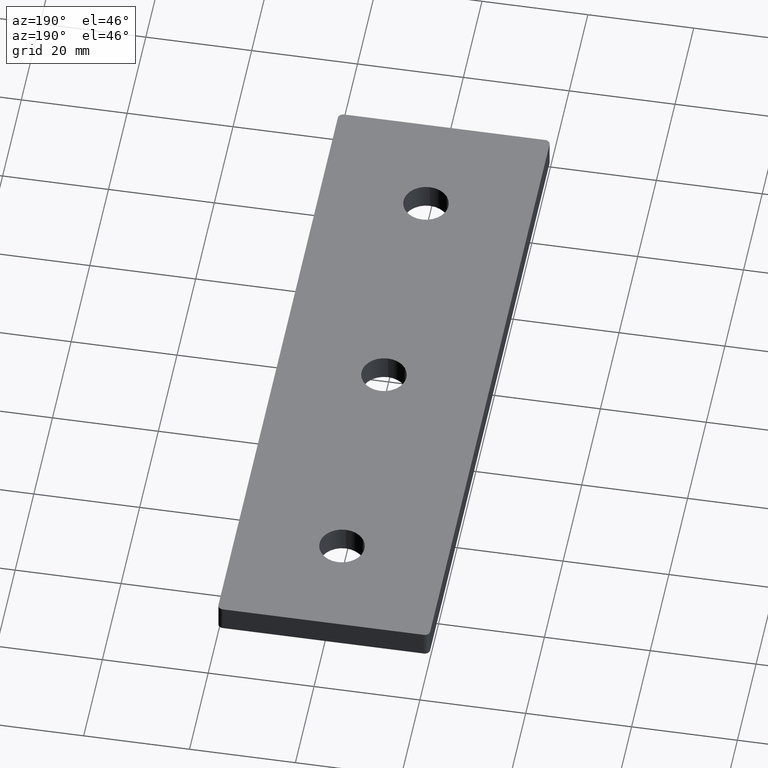
[diagram: clean part render]
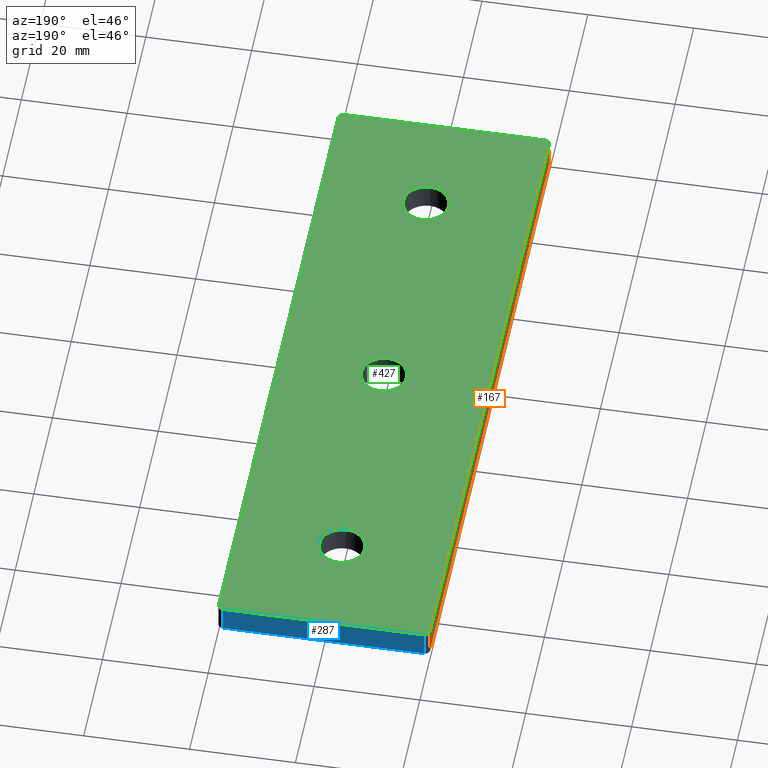
[diagram: same view with three faces highlighted in distinct colors, each labeled with its STEP entity id]
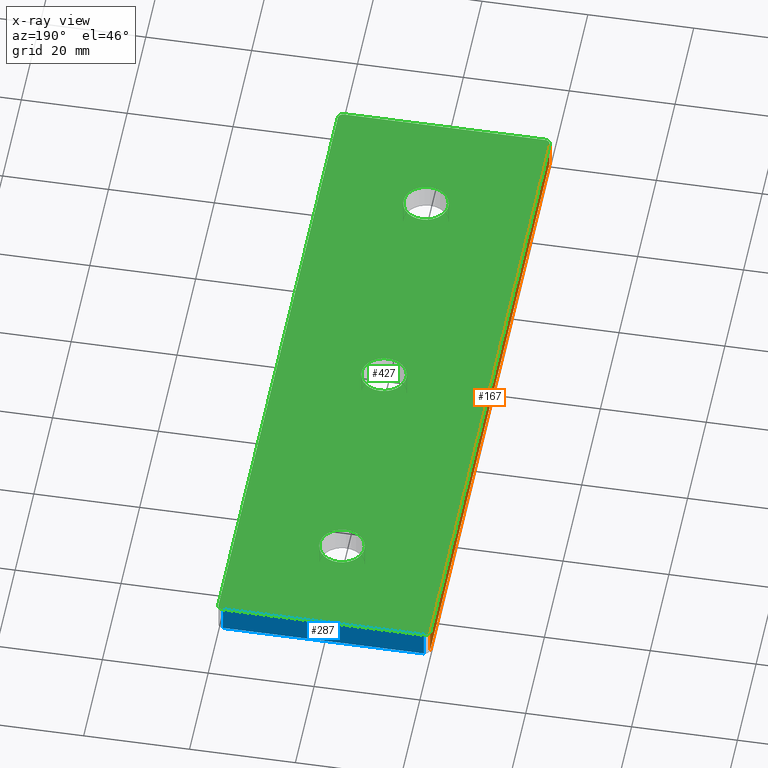
[diagram: x-ray of the same camera — body ghosted, the three highlighted faces saturated]
A machine part, auxiliary view with three faces highlighted in distinct colors.
The next image is the same camera in x-ray (body ghosted, the three faces saturated) — at least one of them is partly hidden behind the body in this view.
Their STEP definitions:

[orange] entity #167 — the highlighted planar face has unit normal (-1, 0, 0).
#128=CARTESIAN_POINT('',(-20.0,-5.400000000000000,-0.250000000000000));
#129=DIRECTION('',(-1.0,0.0,0.0));
#130=DIRECTION('',(0.0,0.0,1.0));
#131=AXIS2_PLACEMENT_3D('',#128,#129,#130);
#132=PLANE('',#131);
#133=CARTESIAN_POINT('',(-20.0,129.0,5.0));
#134=VERTEX_POINT('',#133);
#135=CARTESIAN_POINT('',(-20.0,1.000000000000002,5.0));
#136=VERTEX_POINT('',#135);
#137=CARTESIAN_POINT('',(-20.0,129.0,5.0));
#138=DIRECTION('',(0.0,-1.0,0.0));
#139=VECTOR('',#138,128.0);
#140=LINE('',#137,#139);
#141=EDGE_CURVE('',#134,#136,#140,.T.);
#142=ORIENTED_EDGE('',*,*,#141,.F.);
#143=CARTESIAN_POINT('',(-20.0,129.0,0.0));
#144=VERTEX_POINT('',#143);
#145=CARTESIAN_POINT('',(-20.0,129.0,5.0));
#146=DIRECTION('',(0.0,0.0,-1.0));
#147=VECTOR('',#146,5.0);
#148=LINE('',#145,#147);
#149=EDGE_CURVE('',#134,#144,#148,.T.);
#150=ORIENTED_EDGE('',*,*,#149,.T.);
#151=CARTESIAN_POINT('',(-20.0,1.000000000000002,0.0));
#152=VERTEX_POINT('',#151);
#153=CARTESIAN_POINT('',(-20.0,129.0,0.0));
#154=DIRECTION('',(0.0,-1.0,0.0));
#155=VECTOR('',#154,128.0);
#156=LINE('',#153,#155);
#157=EDGE_CURVE('',#144,#152,#156,.T.);
#158=ORIENTED_EDGE('',*,*,#157,.T.);
#159=CARTESIAN_POINT('',(-20.0,1.000000000000002,0.0));
#160=DIRECTION('',(0.0,0.0,1.0));
#161=VECTOR('',#160,5.0);
#162=LINE('',#159,#161);
#163=EDGE_CURVE('',#152,#136,#162,.T.);
#164=ORIENTED_EDGE('',*,*,#163,.T.);
#165=EDGE_LOOP('',(#142,#150,#158,#164));
#166=FACE_OUTER_BOUND('',#165,.T.);
#167=ADVANCED_FACE('',(#166),#132,.T.);

[blue] entity #287 — the highlighted planar face has unit normal (0, 1, 0).
#248=CARTESIAN_POINT('',(-20.900000000000006,130.0,-0.250000000000000));
#249=DIRECTION('',(0.0,1.0,0.0));
#250=DIRECTION('',(0.0,0.0,1.0));
#251=AXIS2_PLACEMENT_3D('',#248,#249,#250);
#252=PLANE('',#251);
#253=CARTESIAN_POINT('',(19.000000000000014,130.0,0.0));
#254=VERTEX_POINT('',#253);
#255=CARTESIAN_POINT('',(-19.0,130.0,0.0));
#256=VERTEX_POINT('',#255);
#257=CARTESIAN_POINT('',(19.000000000000014,130.0,0.0));
#258=DIRECTION('',(-1.0,0.0,0.0));
#259=VECTOR('',#258,38.000000000000014);
#260=LINE('',#257,#259);
#261=EDGE_CURVE('',#254,#256,#260,.T.);
#262=ORIENTED_EDGE('',*,*,#261,.T.);
#263=CARTESIAN_POINT('',(-19.0,130.0,5.0));
#264=VERTEX_POINT('',#263);
#265=CARTESIAN_POINT('',(-19.0,130.0,0.0));
#266=DIRECTION('',(0.0,0.0,1.0));
#267=VECTOR('',#266,5.0);
#268=LINE('',#265,#267);
#269=EDGE_CURVE('',#256,#264,#268,.T.);
#270=ORIENTED_EDGE('',*,*,#269,.T.);
#271=CARTESIAN_POINT('',(19.000000000000014,130.0,5.0));
#272=VERTEX_POINT('',#271);
#273=CARTESIAN_POINT('',(19.000000000000014,130.0,5.0));
#274=DIRECTION('',(-1.0,0.0,0.0));
#275=VECTOR('',#274,38.000000000000014);
#276=LINE('',#273,#275);
#277=EDGE_CURVE('',#272,#264,#276,.T.);
#278=ORIENTED_EDGE('',*,*,#277,.F.);
#279=CARTESIAN_POINT('',(19.000000000000014,130.0,5.0));
#280=DIRECTION('',(0.0,0.0,-1.0));
#281=VECTOR('',#280,5.0);
#282=LINE('',#279,#281);
#283=EDGE_CURVE('',#272,#254,#282,.T.);
#284=ORIENTED_EDGE('',*,*,#283,.T.);
#285=EDGE_LOOP('',(#262,#270,#278,#284));
#286=FACE_OUTER_BOUND('',#285,.T.);
#287=ADVANCED_FACE('',(#286),#252,.T.);

[green] entity #427 — the highlighted planar face has unit normal (0, 0, 1).
#7=CARTESIAN_POINT('',(0.0,114.250000000000000,5.0));
#8=VERTEX_POINT('',#7);
#9=CARTESIAN_POINT('',(0.0,105.749999999999990,5.0));
#10=VERTEX_POINT('',#9);
#11=CARTESIAN_POINT('',(0.0,109.999999999999990,5.0));
#12=DIRECTION('',(0.0,0.0,-1.0));
#13=DIRECTION('',(0.0,-1.0,0.0));
#14=AXIS2_PLACEMENT_3D('',#11,#12,#13);
#15=CIRCLE('',#14,4.250000000000004);
#16=EDGE_CURVE('',#8,#10,#15,.T.);
#49=CARTESIAN_POINT('',(0.0,24.250000000000014,5.0));
#50=VERTEX_POINT('',#49);
#51=CARTESIAN_POINT('',(0.0,15.750000000000011,5.0));
#52=VERTEX_POINT('',#51);
#53=CARTESIAN_POINT('',(0.0,20.000000000000011,5.0));
#54=DIRECTION('',(0.0,0.0,-1.0));
#55=DIRECTION('',(0.0,-1.0,0.0));
#56=AXIS2_PLACEMENT_3D('',#53,#54,#55);
#57=CIRCLE('',#56,4.250000000000000);
#58=EDGE_CURVE('',#50,#52,#57,.T.);
#91=CARTESIAN_POINT('',(0.0,69.250000000000000,5.0));
#92=VERTEX_POINT('',#91);
#93=CARTESIAN_POINT('',(0.0,60.750000000000021,5.0));
#94=VERTEX_POINT('',#93);
#95=CARTESIAN_POINT('',(0.0,65.0,5.0));
#96=DIRECTION('',(0.0,0.0,-1.0));
#97=DIRECTION('',(0.0,-1.0,0.0));
#98=AXIS2_PLACEMENT_3D('',#95,#96,#97);
#99=CIRCLE('',#98,4.249999999999997);
#100=EDGE_CURVE('',#92,#94,#99,.T.);
#133=CARTESIAN_POINT('',(-20.0,129.0,5.0));
#134=VERTEX_POINT('',#133);
#135=CARTESIAN_POINT('',(-20.0,1.000000000000002,5.0));
#136=VERTEX_POINT('',#135);
#137=CARTESIAN_POINT('',(-20.0,129.0,5.0));
#138=DIRECTION('',(0.0,-1.0,0.0));
#139=VECTOR('',#138,128.0);
#140=LINE('',#137,#139);
#141=EDGE_CURVE('',#134,#136,#140,.T.);
#183=CARTESIAN_POINT('',(19.000000000000014,0.0,5.0));
#184=VERTEX_POINT('',#183);
#191=CARTESIAN_POINT('',(-19.0,0.0,5.0));
#192=VERTEX_POINT('',#191);
#193=CARTESIAN_POINT('',(-19.0,0.0,5.0));
#194=DIRECTION('',(1.0,0.0,0.0));
#195=VECTOR('',#194,38.000000000000014);
#196=LINE('',#193,#195);
#197=EDGE_CURVE('',#192,#184,#196,.T.);
#213=CARTESIAN_POINT('',(20.000000000000014,1.000000000000002,5.0));
#214=VERTEX_POINT('',#213);
#215=CARTESIAN_POINT('',(20.000000000000014,129.0,5.0));
#216=VERTEX_POINT('',#215);
#217=CARTESIAN_POINT('',(20.000000000000014,1.000000000000002,5.0));
#218=DIRECTION('',(0.0,1.0,0.0));
#219=VECTOR('',#218,128.0);
#220=LINE('',#217,#219);
#221=EDGE_CURVE('',#214,#216,#220,.T.);
#263=CARTESIAN_POINT('',(-19.0,130.0,5.0));
#264=VERTEX_POINT('',#263);
#271=CARTESIAN_POINT('',(19.000000000000014,130.0,5.0));
#272=VERTEX_POINT('',#271);
#273=CARTESIAN_POINT('',(19.000000000000014,130.0,5.0));
#274=DIRECTION('',(-1.0,0.0,0.0));
#275=VECTOR('',#274,38.000000000000014);
#276=LINE('',#273,#275);
#277=EDGE_CURVE('',#272,#264,#276,.T.);
#358=CARTESIAN_POINT('',(-22.0,-6.500000000000000,5.0));
#359=DIRECTION('',(0.0,0.0,1.0));
#360=DIRECTION('',(1.0,0.0,0.0));
#361=AXIS2_PLACEMENT_3D('',#358,#359,#360);
#362=PLANE('',#361);
#363=ORIENTED_EDGE('',*,*,#277,.T.);
#364=CARTESIAN_POINT('',(-19.0,129.0,5.0));
#365=DIRECTION('',(0.0,0.0,1.0));
#366=DIRECTION('',(1.0,0.0,0.0));
#367=AXIS2_PLACEMENT_3D('',#364,#365,#366);
#368=CIRCLE('',#367,1.000000000000001);
#369=EDGE_CURVE('',#264,#134,#368,.T.);
#370=ORIENTED_EDGE('',*,*,#369,.T.);
#371=ORIENTED_EDGE('',*,*,#141,.T.);
#372=CARTESIAN_POINT('',(-19.0,1.000000000000002,5.0));
#373=DIRECTION('',(0.0,0.0,1.0));
#374=DIRECTION('',(1.0,0.0,0.0));
#375=AXIS2_PLACEMENT_3D('',#372,#373,#374);
#376=CIRCLE('',#375,1.000000000000001);
#377=EDGE_CURVE('',#136,#192,#376,.T.);
#378=ORIENTED_EDGE('',*,*,#377,.T.);
#379=ORIENTED_EDGE('',*,*,#197,.T.);
#380=CARTESIAN_POINT('',(19.000000000000014,1.000000000000002,5.0));
#381=DIRECTION('',(0.0,0.0,1.0));
#382=DIRECTION('',(1.0,0.0,0.0));
#383=AXIS2_PLACEMENT_3D('',#380,#381,#382);
#384=CIRCLE('',#383,1.000000000000001);
#385=EDGE_CURVE('',#184,#214,#384,.T.);
#386=ORIENTED_EDGE('',*,*,#385,.T.);
#387=ORIENTED_EDGE('',*,*,#221,.T.);
#388=CARTESIAN_POINT('',(19.000000000000014,129.0,5.0));
#389=DIRECTION('',(0.0,0.0,1.0));
#390=DIRECTION('',(1.0,0.0,0.0));
#391=AXIS2_PLACEMENT_3D('',#388,#389,#390);
#392=CIRCLE('',#391,1.000000000000001);
#393=EDGE_CURVE('',#216,#272,#392,.T.);
#394=ORIENTED_EDGE('',*,*,#393,.T.);
#395=EDGE_LOOP('',(#363,#370,#371,#378,#379,#386,#387,#394));
#396=FACE_OUTER_BOUND('',#395,.T.);
#397=CARTESIAN_POINT('',(0.0,20.000000000000011,5.0));
#398=DIRECTION('',(0.0,0.0,-1.0));
#399=DIRECTION('',(0.0,-1.0,0.0));
#400=AXIS2_PLACEMENT_3D('',#397,#398,#399);
#401=CIRCLE('',#400,4.250000000000000);
#402=EDGE_CURVE('',#52,#50,#401,.T.);
#403=ORIENTED_EDGE('',*,*,#402,.T.);
#404=ORIENTED_EDGE('',*,*,#58,.T.);
#405=EDGE_LOOP('',(#403,#404));
#406=FACE_BOUND('',#405,.T.);
#407=CARTESIAN_POINT('',(0.0,65.0,5.0));
#408=DIRECTION('',(0.0,0.0,-1.0));
#409=DIRECTION('',(0.0,-1.0,0.0));
#410=AXIS2_PLACEMENT_3D('',#407,#408,#409);
#411=CIRCLE('',#410,4.249999999999997);
#412=EDGE_CURVE('',#94,#92,#411,.T.);
#413=ORIENTED_EDGE('',*,*,#412,.T.);
#414=ORIENTED_EDGE('',*,*,#100,.T.);
#415=EDGE_LOOP('',(#413,#414));
#416=FACE_BOUND('',#415,.T.);
#417=CARTESIAN_POINT('',(0.0,109.999999999999990,5.0));
#418=DIRECTION('',(0.0,0.0,-1.0));
#419=DIRECTION('',(0.0,-1.0,0.0));
#420=AXIS2_PLACEMENT_3D('',#417,#418,#419);
#421=CIRCLE('',#420,4.250000000000004);
#422=EDGE_CURVE('',#10,#8,#421,.T.);
#423=ORIENTED_EDGE('',*,*,#422,.T.);
#424=ORIENTED_EDGE('',*,*,#16,.T.);
#425=EDGE_LOOP('',(#423,#424));
#426=FACE_BOUND('',#425,.T.);
#427=ADVANCED_FACE('',(#396,#406,#416,#426),#362,.T.);